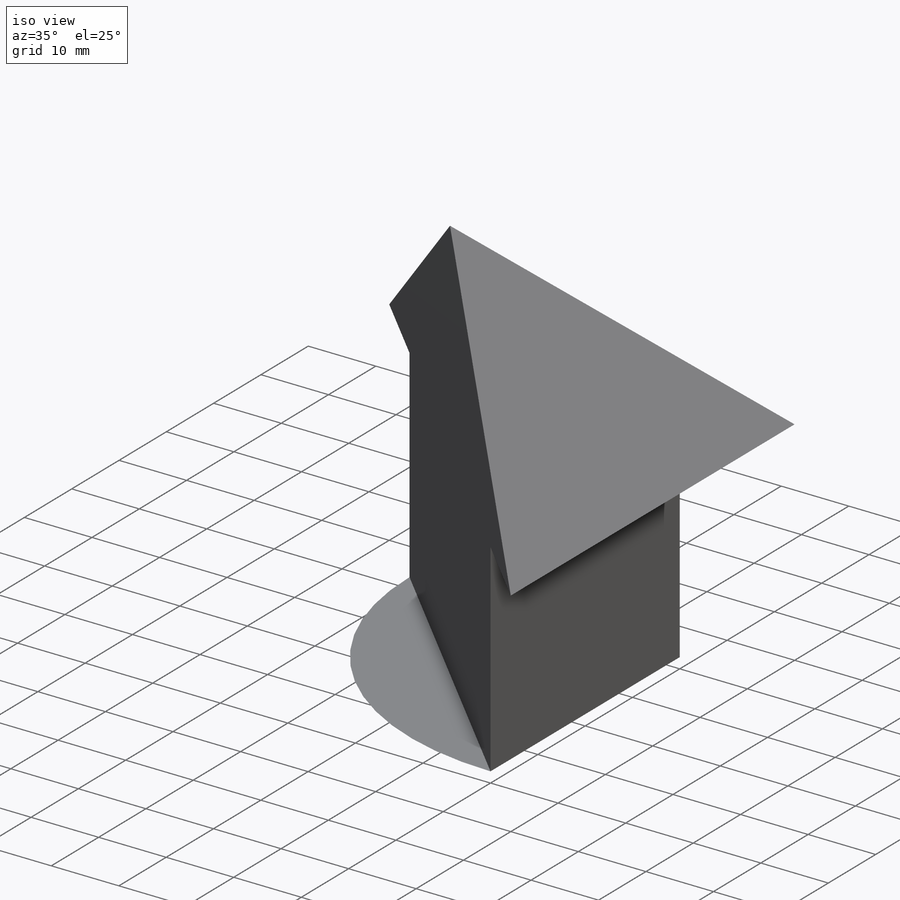
[diagram: iso view]
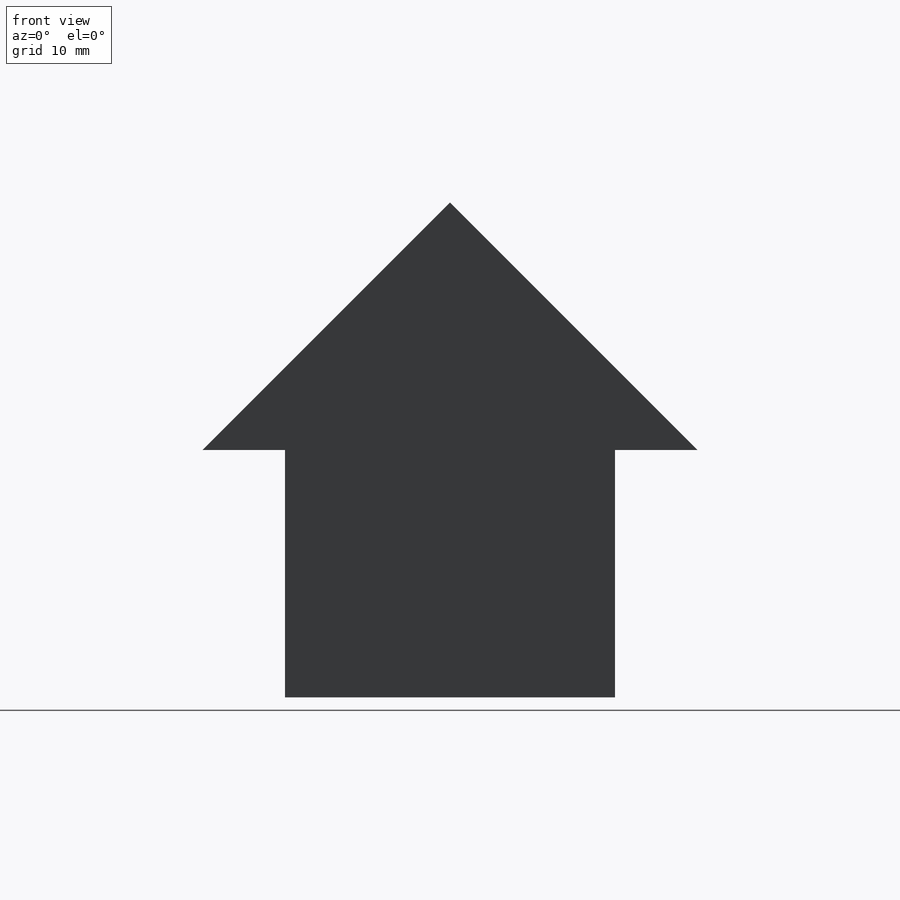
[diagram: front view]
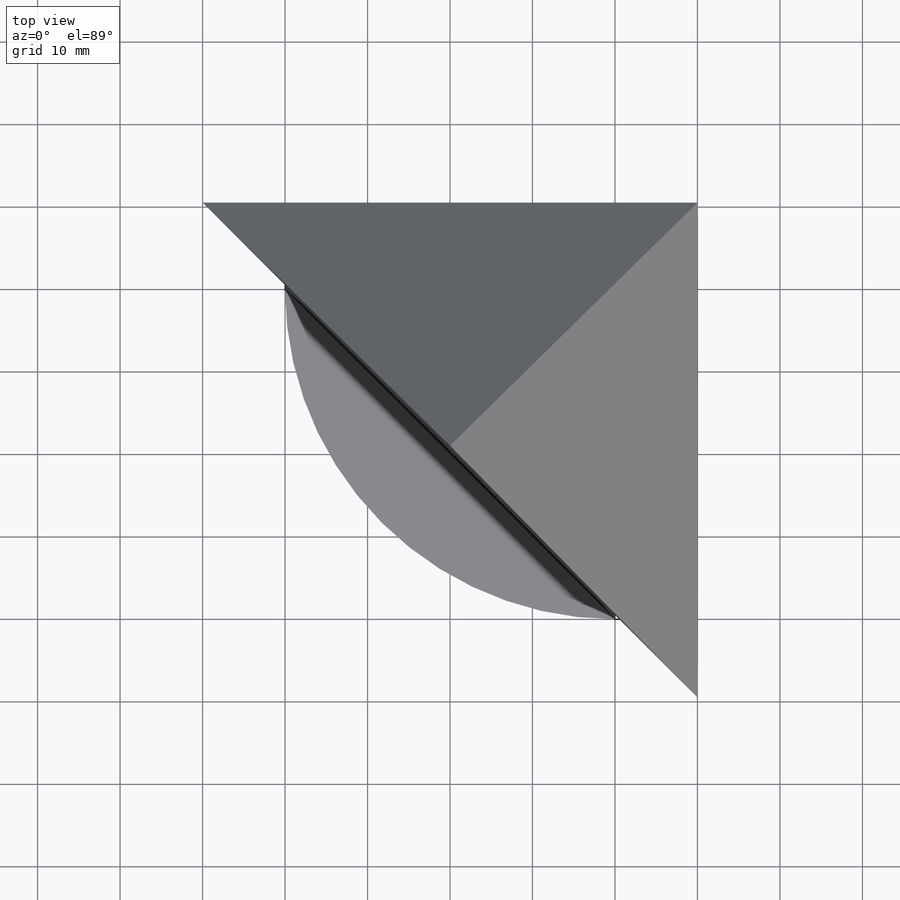
[diagram: top view]
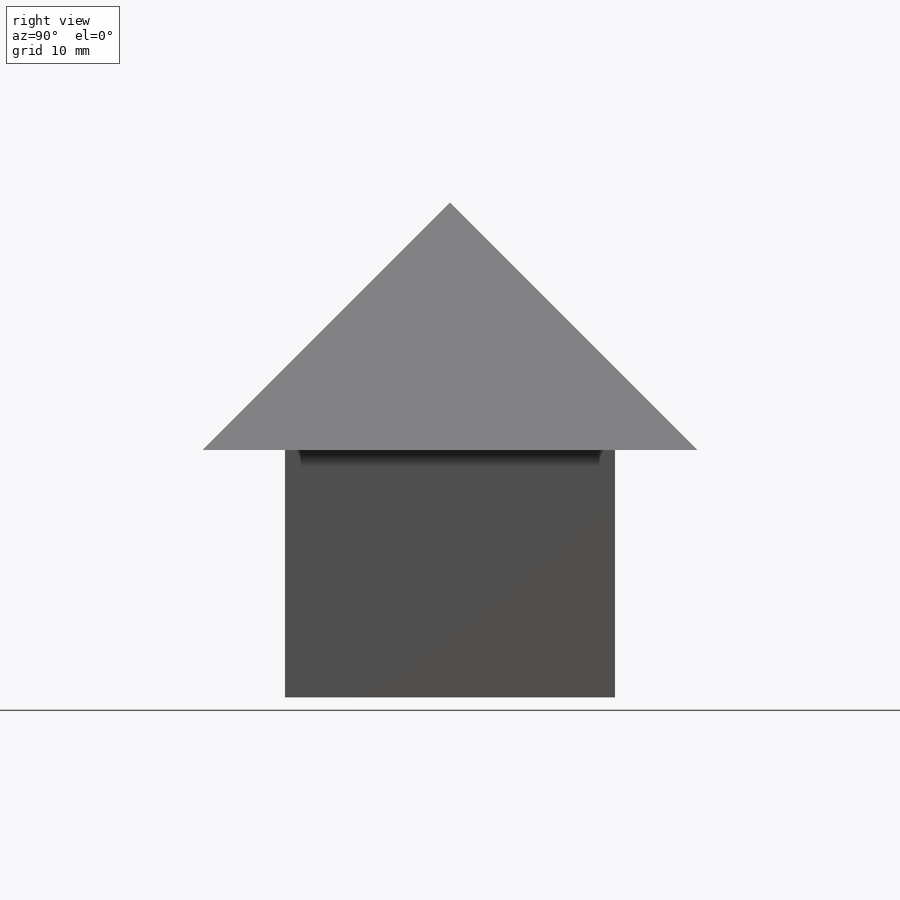
[diagram: right view]
SOLIDWORKS PART (.sldprt)
format: sldprt  version: not decoded by parser v0  size: 194,048 bytes
history: native  units: mm
features: sketch x6, cut_extrude x4, extrude x2, material x1, plane x1 (+13 scaffold rows collapsed)
feature tree (27):
  scaffold x13  (default folders/planes/origin — collapsed)
  material  "Material <not specified>"
  sketch  "Sketch1"  dims[c1.D1=~39.712191mm c1.D2=~37.09159mm c2.D1=40.0mm c2.D2=30.0mm c2.D3=10.0mm c2.D4=10.0mm c2.D5=30.0mm c2.D6=30.0mm]
  extrude  "Boss-Extrude2"  Depth=60mm
  sketch  "Sketch3"  dims[c1.D1=~28.06169mm c1.D2=~30.735784mm c2.D1=10.0mm c2.D2=10.0mm c2.D3=30.0mm c2.D4=10.0mm c2.D5=10.0mm c2.D6=30.0mm c2.D7=30.0mm c2.D8=30.0mm c2.D9=30.0mm c2.D10=10.0mm]
  cut_extrude  "Cut-Extrude1"  Depth=60mm
  sketch  "Sketch4"  dims[D1=10.0mm]
  cut_extrude  "Cut-Extrude2"  Depth=60mm
  sketch  "Sketch5"  dims[D1=~14.142136mm]
  cut_extrude  "Cut-Extrude3"  Depth=60mm
  plane  "Plane1"  Offset=60mm
  sketch  "Sketch6"  dims[D1=60.0mm]
  cut_extrude  "Cut-Extrude4"  Depth=60mm
  sketch  "Sketch7"  dims[D1=40.0mm D2=40.0mm]
  extrude  "Boss-Extrude7"  Depth=0.0001mm
decode coverage: 12 of 12 modeling features carry decoded parameters
note: ~ marks probable driven/reference dimensions
note: suppression state not decoded; provenance and decode notes live in map.json
